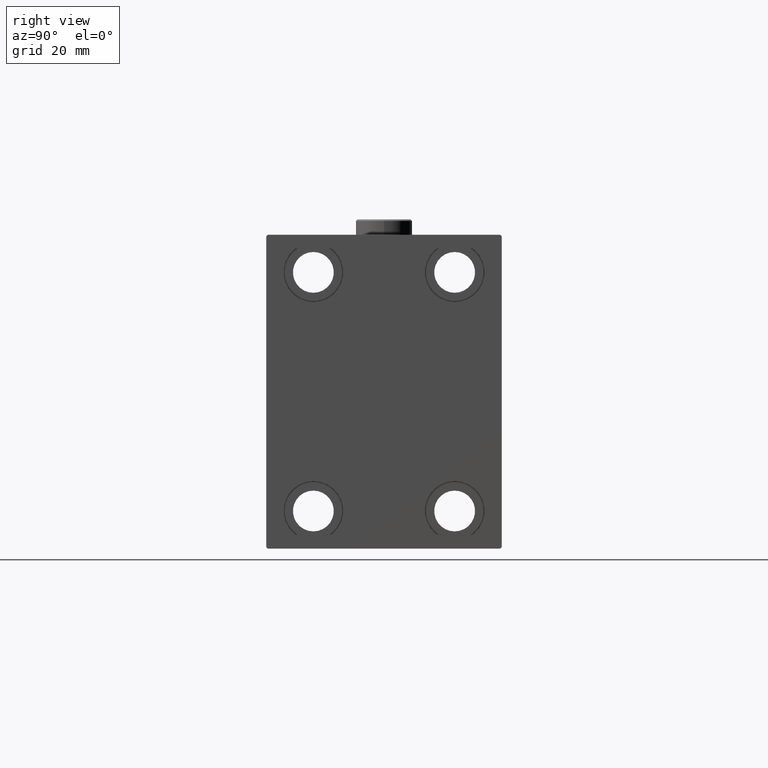
[diagram: clean part render]
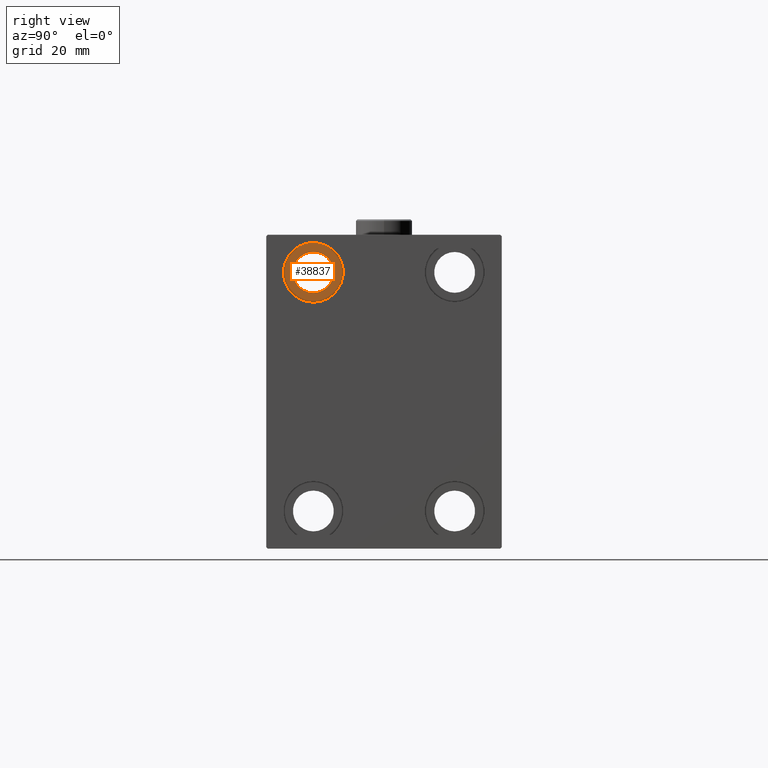
[diagram: same view with one face highlighted and labeled with its STEP entity id]
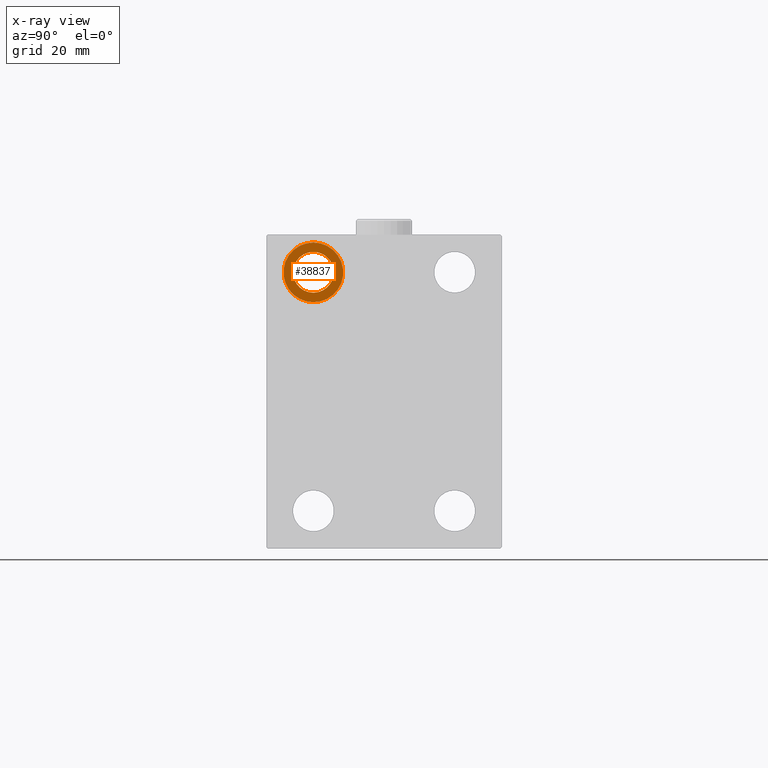
[diagram: x-ray of the same camera — body ghosted, the highlighted face saturated]
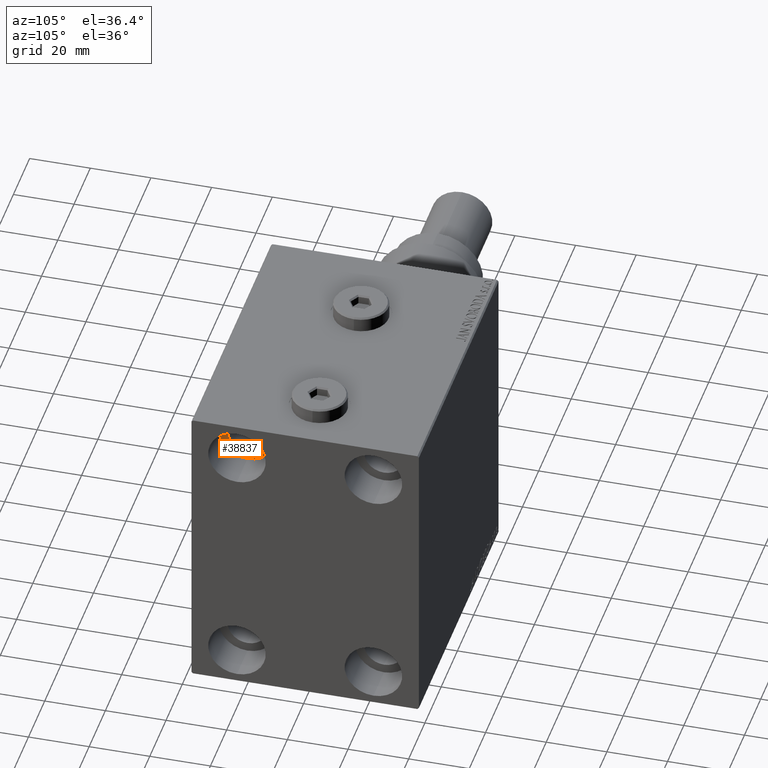
[diagram: same view with one face highlighted and labeled with its STEP entity id]
A machine part, right view. The second image highlights one B-rep face of the part: STEP entity #38837.
The next image is the same camera in x-ray: the body ghosted, the highlighted face saturated — about 0% of this face is hidden behind the body in this view.
A second angle (auxiliary view) of the same face is appended — the face is thin or edge-on in the first view.
In plain terms, the highlighted planar face has unit normal (1, 0, 0).
Its self-contained STEP definition (entity closure, byte-faithful):
#353 = AXIS2_PLACEMENT_3D ( 'NONE', #35630, #6410, #2269 ) ;
#1238 = AXIS2_PLACEMENT_3D ( 'NONE', #14377, #3443, #25342 ) ;
#1717 = CARTESIAN_POINT ( 'NONE',  ( 85.00000000000000000, -22.49999999999999645, 47.49999999999999289 ) ) ;
#2269 = DIRECTION ( 'NONE',  ( 0.000000000000000000, 0.000000000000000000, 1.000000000000000000 ) ) ;
#2670 = CARTESIAN_POINT ( 'NONE',  ( 85.00000000000000000, -22.49999999999999645, 37.99999999999999289 ) ) ;
#3006 = FACE_OUTER_BOUND ( 'NONE', #44886, .T. ) ;
#3366 = CARTESIAN_POINT ( 'NONE',  ( 85.00000000000000000, -22.49999999999999645, 31.49999999999999289 ) ) ;
#3443 = DIRECTION ( 'NONE',  ( -1.000000000000000000, -0.000000000000000000, -0.000000000000000000 ) ) ;
#4421 = ORIENTED_EDGE ( 'NONE', *, *, #38578, .F. ) ;
#4649 = EDGE_CURVE ( 'NONE', #8334, #15373, #18995, .T. ) ;
#5308 = EDGE_LOOP ( 'NONE', ( #22045, #21949 ) ) ;
#6410 = DIRECTION ( 'NONE',  ( -1.000000000000000000, -0.000000000000000000, -0.000000000000000000 ) ) ;
#8334 = VERTEX_POINT ( 'NONE', #35903 ) ;
#11420 = EDGE_CURVE ( 'NONE', #30634, #41078, #43231, .T. ) ;
#11533 = CIRCLE ( 'NONE', #19304, 9.500000000000001776 ) ;
#14377 = CARTESIAN_POINT ( 'NONE',  ( 85.00000000000000000, -22.49999999999999645, 37.99999999999999289 ) ) ;
#15373 = VERTEX_POINT ( 'NONE', #1717 ) ;
#18995 = CIRCLE ( 'NONE', #353, 9.500000000000001776 ) ;
#19304 = AXIS2_PLACEMENT_3D ( 'NONE', #33286, #25492, #25007 ) ;
#19723 = AXIS2_PLACEMENT_3D ( 'NONE', #2670, #42839, #35769 ) ;
#20994 = FACE_BOUND ( 'NONE', #5308, .T. ) ;
#21299 = CIRCLE ( 'NONE', #19723, 6.499999999999999112 ) ;
#21949 = ORIENTED_EDGE ( 'NONE', *, *, #11420, .T. ) ;
#22045 = ORIENTED_EDGE ( 'NONE', *, *, #23510, .T. ) ;
#23510 = EDGE_CURVE ( 'NONE', #41078, #30634, #21299, .T. ) ;
#25007 = DIRECTION ( 'NONE',  ( 0.000000000000000000, 0.000000000000000000, 1.000000000000000000 ) ) ;
#25342 = DIRECTION ( 'NONE',  ( 0.000000000000000000, 0.000000000000000000, -1.000000000000000000 ) ) ;
#25492 = DIRECTION ( 'NONE',  ( -1.000000000000000000, -0.000000000000000000, -0.000000000000000000 ) ) ;
#28040 = PLANE ( 'NONE',  #34837 ) ;
#29023 = DIRECTION ( 'NONE',  ( 1.000000000000000000, 0.000000000000000000, -0.000000000000000000 ) ) ;
#30634 = VERTEX_POINT ( 'NONE', #3366 ) ;
#32001 = ORIENTED_EDGE ( 'NONE', *, *, #4649, .F. ) ;
#33286 = CARTESIAN_POINT ( 'NONE',  ( 85.00000000000000000, -22.49999999999999645, 37.99999999999999289 ) ) ;
#34837 = AXIS2_PLACEMENT_3D ( 'NONE', #42923, #29023, #43904 ) ;
#35630 = CARTESIAN_POINT ( 'NONE',  ( 85.00000000000000000, -22.49999999999999645, 37.99999999999999289 ) ) ;
#35769 = DIRECTION ( 'NONE',  ( 0.000000000000000000, 0.000000000000000000, -1.000000000000000000 ) ) ;
#35903 = CARTESIAN_POINT ( 'NONE',  ( 85.00000000000000000, -22.49999999999999645, 28.49999999999998934 ) ) ;
#38578 = EDGE_CURVE ( 'NONE', #15373, #8334, #11533, .T. ) ;
#38837 = ADVANCED_FACE ( 'NONE', ( #3006, #20994 ), #28040, .T. ) ;
#41078 = VERTEX_POINT ( 'NONE', #48179 ) ;
#42839 = DIRECTION ( 'NONE',  ( -1.000000000000000000, -0.000000000000000000, -0.000000000000000000 ) ) ;
#42923 = CARTESIAN_POINT ( 'NONE',  ( 85.00000000000000000, 0.000000000000000000, 0.000000000000000000 ) ) ;
#43231 = CIRCLE ( 'NONE', #1238, 6.499999999999999112 ) ;
#43904 = DIRECTION ( 'NONE',  ( 0.000000000000000000, 0.000000000000000000, 1.000000000000000000 ) ) ;
#44886 = EDGE_LOOP ( 'NONE', ( #32001, #4421 ) ) ;
#48179 = CARTESIAN_POINT ( 'NONE',  ( 85.00000000000000000, -22.49999999999999645, 44.49999999999999289 ) ) ;